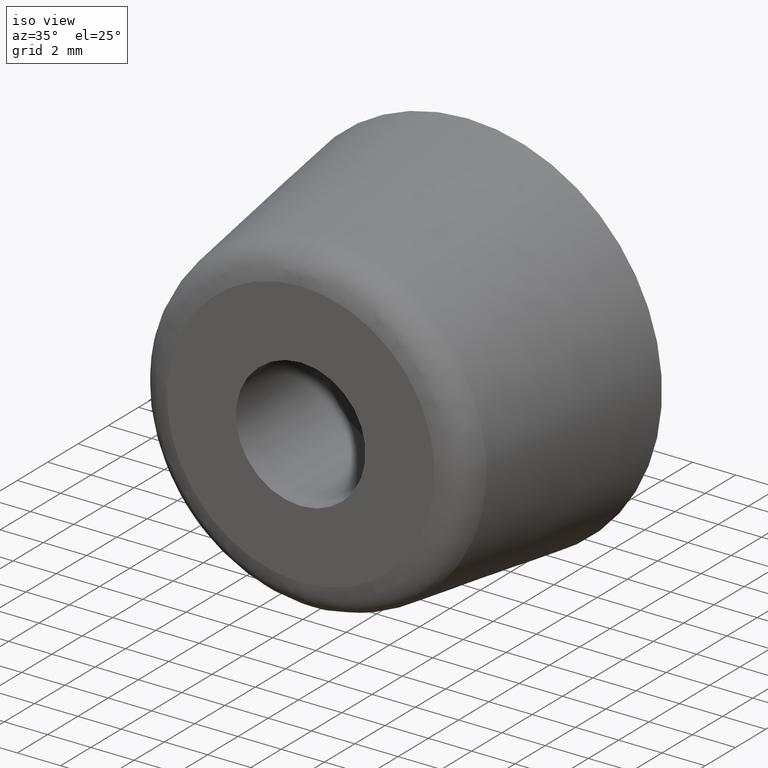
[diagram: clean part render]
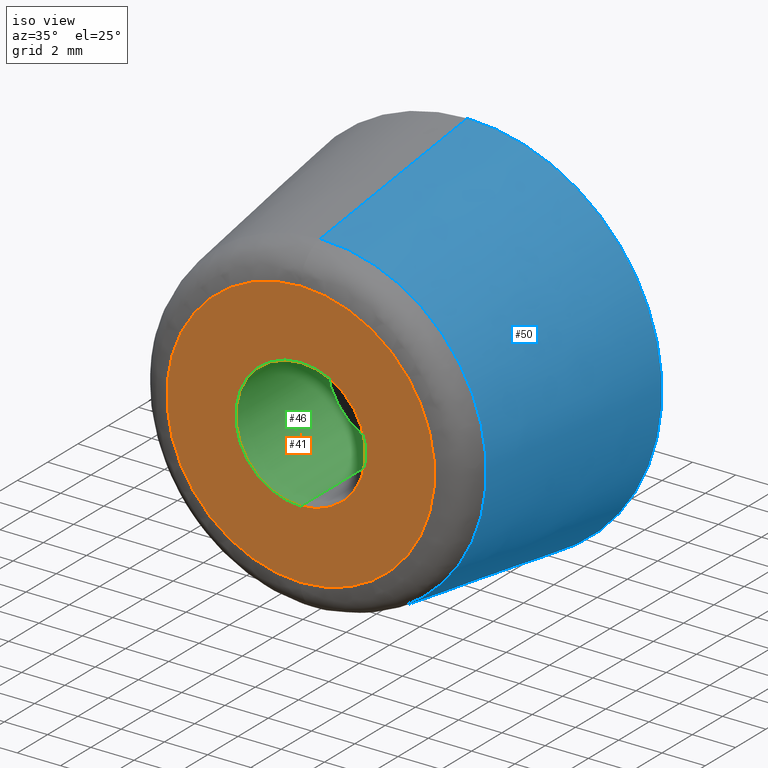
[diagram: same view with three faces highlighted in distinct colors, each labeled with its STEP entity id]
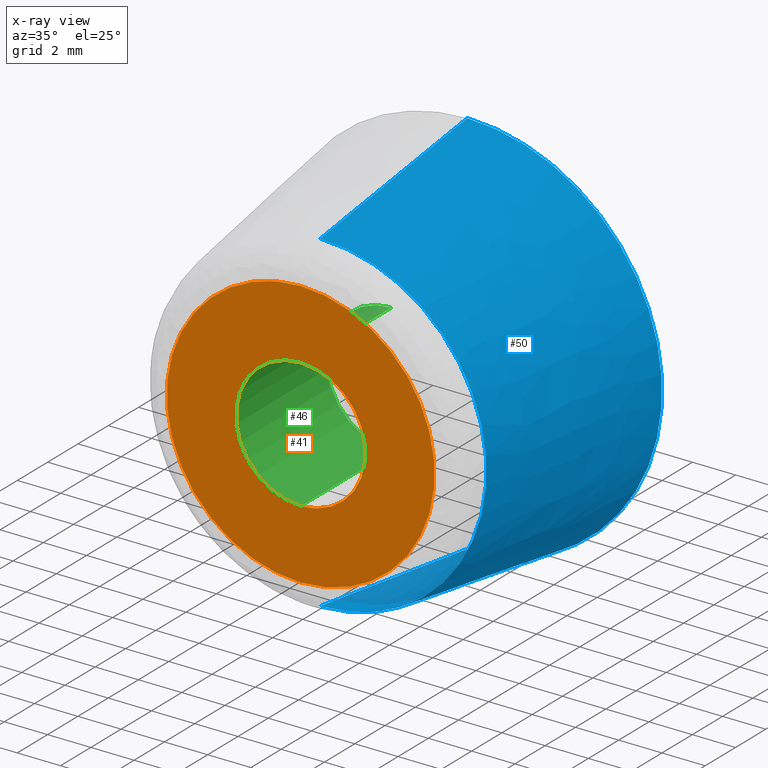
[diagram: x-ray of the same camera — body ghosted, the three highlighted faces saturated]
A machine part, iso view with three faces highlighted in distinct colors.
The next image is the same camera in x-ray (body ghosted, the three faces saturated) — at least one of them is partly hidden behind the body in this view.
Their STEP definitions:

[orange] entity #41 — the highlighted planar face has unit normal (0, -1, -0).
#41=ADVANCED_FACE('',(#63,#64),#62,.T.);
#62=PLANE('',#173);
#63=FACE_OUTER_BOUND('',#174,.T.);
#64=FACE_BOUND('',#175,.T.);
#170=CARTESIAN_POINT('',(-1.28670522717E+01,-1.10000000000E+01,1.42385258444E+01));
#171=DIRECTION('',(0.00000000000E+00,-1.00000000000E+00,-0.00000000000E+00));
#172=DIRECTION('',(0.00000000000E+00,0.00000000000E+00,-1.00000000000E+00));
#173=AXIS2_PLACEMENT_3D('',#170,#171,#172);
#174=EDGE_LOOP('',(#280,#281));
#175=EDGE_LOOP('',(#282,#283));
#280=ORIENTED_EDGE('',*,*,#324,.T.);
#281=ORIENTED_EDGE('',*,*,#325,.T.);
#282=ORIENTED_EDGE('',*,*,#326,.F.);
#283=ORIENTED_EDGE('',*,*,#327,.F.);
#324=EDGE_CURVE('',#370,#371,#372,.T.);
#325=EDGE_CURVE('',#371,#370,#378,.T.);
#326=EDGE_CURVE('',#384,#385,#386,.T.);
#327=EDGE_CURVE('',#385,#384,#392,.T.);
#370=VERTEX_POINT('',#508);
#371=VERTEX_POINT('',#509);
#372=CIRCLE('',#513,6.19066341060E+00);
#378=CIRCLE('',#517,6.19066341060E+00);
#384=VERTEX_POINT('',#518);
#385=VERTEX_POINT('',#519);
#386=CIRCLE('',#523,3.00000000000E+00);
#392=CIRCLE('',#527,3.00000000000E+00);
#508=CARTESIAN_POINT('',(3.55271367880E-14,-1.10000000000E+01,-6.19066341060E+00));
#509=CARTESIAN_POINT('',(3.52310773148E-14,-1.10000000000E+01,6.19066341060E+00));
#510=CARTESIAN_POINT('',(3.55271367880E-14,-1.10000000000E+01,0.00000000000E+00));
#511=DIRECTION('',(0.00000000000E+00,-1.00000000000E+00,-0.00000000000E+00));
#512=DIRECTION('',(-1.22460635382E-16,0.00000000000E+00,-1.00000000000E+00));
#513=AXIS2_PLACEMENT_3D('',#510,#511,#512);
#514=CARTESIAN_POINT('',(3.55271367880E-14,-1.10000000000E+01,0.00000000000E+00));
#515=DIRECTION('',(0.00000000000E+00,-1.00000000000E+00,-0.00000000000E+00));
#516=DIRECTION('',(-1.22460635382E-16,0.00000000000E+00,-1.00000000000E+00));
#517=AXIS2_PLACEMENT_3D('',#514,#515,#516);
#518=CARTESIAN_POINT('',(3.53791070514E-14,-1.10000000000E+01,3.00000000000E+00));
#519=CARTESIAN_POINT('',(3.55271367880E-14,-1.10000000000E+01,-3.00000000000E+00));
#520=CARTESIAN_POINT('',(3.55271367880E-14,-1.10000000000E+01,0.00000000000E+00));
#521=DIRECTION('',(0.00000000000E+00,-1.00000000000E+00,-0.00000000000E+00));
#522=DIRECTION('',(-1.22460635382E-16,0.00000000000E+00,-1.00000000000E+00));
#523=AXIS2_PLACEMENT_3D('',#520,#521,#522);
#524=CARTESIAN_POINT('',(3.55271367880E-14,-1.10000000000E+01,0.00000000000E+00));
#525=DIRECTION('',(0.00000000000E+00,-1.00000000000E+00,-0.00000000000E+00));
#526=DIRECTION('',(-1.22460635382E-16,0.00000000000E+00,-1.00000000000E+00));
#527=AXIS2_PLACEMENT_3D('',#524,#525,#526);

[blue] entity #50 — the highlighted face is a freeform B-spline surface patch.
#50=ADVANCED_FACE('',(#155),#154,.T.);
#154=( BOUNDED_SURFACE() B_SPLINE_SURFACE( 2,1,((#265,#266),(#267,#268),(#269,#270),(#271,#272),(#273,#274)), .UNSPECIFIED.,.F.,.F.,.F.) B_SPLINE_SURFACE_WITH_KNOTS((3,2,3),(2,2),(0.00000000000E+00,5.00000000000E-01,1.00000000000E+00),(0.00000000000E+00,1.00000000000E+00), .UNSPECIFIED. ) GEOMETRIC_REPRESENTATION_ITEM() RATIONAL_B_SPLINE_SURFACE(((1.00000000000E+00,1.00000000000E+00),(7.07106781187E-01,7.07106781187E-01),(1.00000000000E+00,1.00000000000E+00),(7.07106781187E-01,7.07106781187E-01),(1.00000000000E+00,1.00000000000E+00))) REPRESENTATION_ITEM('') SURFACE() );
#155=FACE_OUTER_BOUND('',#275,.T.);
#265=CARTESIAN_POINT('',(3.64672869501E-14,-9.70266980710E+00,7.67690866267E+00));
#266=CARTESIAN_POINT('',(3.66293189072E-14,0.00000000000E+00,9.00000000000E+00));
#267=CARTESIAN_POINT('',(7.67690866267E+00,-9.70266980710E+00,7.67690866267E+00));
#268=CARTESIAN_POINT('',(9.00000000000E+00,0.00000000000E+00,9.00000000000E+00));
#269=CARTESIAN_POINT('',(7.67690866267E+00,-9.70266980710E+00,-4.70075081054E-16));
#270=CARTESIAN_POINT('',(9.00000000000E+00,0.00000000000E+00,-5.51091059616E-16));
#271=CARTESIAN_POINT('',(7.67690866267E+00,-9.70266980710E+00,-7.67690866267E+00));
#272=CARTESIAN_POINT('',(9.00000000000E+00,0.00000000000E+00,-9.00000000000E+00));
#273=CARTESIAN_POINT('',(3.55271367880E-14,-9.70266980710E+00,-7.67690866267E+00));
#274=CARTESIAN_POINT('',(3.55271367880E-14,0.00000000000E+00,-9.00000000000E+00));
#275=EDGE_LOOP('',(#316,#317,#318,#319));
#316=ORIENTED_EDGE('',*,*,#339,.F.);
#317=ORIENTED_EDGE('',*,*,#340,.T.);
#318=ORIENTED_EDGE('',*,*,#329,.T.);
#319=ORIENTED_EDGE('',*,*,#341,.F.);
#329=EDGE_CURVE('',#399,#398,#406,.T.);
#339=EDGE_CURVE('',#457,#450,#470,.T.);
#340=EDGE_CURVE('',#457,#399,#476,.T.);
#341=EDGE_CURVE('',#450,#398,#482,.T.);
#398=VERTEX_POINT('',#528);
#399=VERTEX_POINT('',#529);
#406=CIRCLE('',#537,9.00000000000E+00);
#450=VERTEX_POINT('',#556);
#457=VERTEX_POINT('',#560);
#470=CIRCLE('',#573,7.67690866267E+00);
#476=(BOUNDED_CURVE() B_SPLINE_CURVE(1,(#574,#575),.UNSPECIFIED.,.F.,.F.) B_SPLINE_CURVE_WITH_KNOTS((2,2),(0.00000000000E+00,1.00000000000E+00),.UNSPECIFIED.) CURVE() GEOMETRIC_REPRESENTATION_ITEM() RATIONAL_B_SPLINE_CURVE((1.00000000000E+00,1.00000000000E+00)) REPRESENTATION_ITEM('') );
#482=(BOUNDED_CURVE() B_SPLINE_CURVE(1,(#576,#577),.UNSPECIFIED.,.F.,.F.) B_SPLINE_CURVE_WITH_KNOTS((2,2),(0.00000000000E+00,1.00000000000E+00),.UNSPECIFIED.) CURVE() GEOMETRIC_REPRESENTATION_ITEM() RATIONAL_B_SPLINE_CURVE((7.50000000000E-01,7.50000000000E-01)) REPRESENTATION_ITEM('') );
#528=CARTESIAN_POINT('',(3.61192557345E-14,0.00000000000E+00,9.00000000000E+00));
#529=CARTESIAN_POINT('',(3.55271367880E-14,0.00000000000E+00,-9.00000000000E+00));
#534=CARTESIAN_POINT('',(3.55271367880E-14,0.00000000000E+00,0.00000000000E+00));
#535=DIRECTION('',(0.00000000000E+00,-1.00000000000E+00,-0.00000000000E+00));
#536=DIRECTION('',(-1.22460635382E-16,0.00000000000E+00,-1.00000000000E+00));
#537=AXIS2_PLACEMENT_3D('',#534,#535,#536);
#556=CARTESIAN_POINT('',(3.64153152077E-14,-9.70266980710E+00,7.67690866267E+00));
#560=CARTESIAN_POINT('',(3.55271367880E-14,-9.70266980710E+00,-7.67690866267E+00));
#570=CARTESIAN_POINT('',(3.55271367880E-14,-9.70266980710E+00,0.00000000000E+00));
#571=DIRECTION('',(0.00000000000E+00,-1.00000000000E+00,-0.00000000000E+00));
#572=DIRECTION('',(-1.22460635382E-16,0.00000000000E+00,-1.00000000000E+00));
#573=AXIS2_PLACEMENT_3D('',#570,#571,#572);
#574=CARTESIAN_POINT('',(3.36468985628E-14,-9.70266980710E+00,-7.67690866267E+00));
#575=CARTESIAN_POINT('',(3.33228453511E-14,0.00000000000E+00,-9.00000000000E+00));
#576=CARTESIAN_POINT('',(3.73034936274E-14,-9.70266980710E+00,7.67690866267E+00));
#577=CARTESIAN_POINT('',(3.75995531006E-14,0.00000000000E+00,9.00000000000E+00));

[green] entity #46 — the highlighted cylindrical surface (partial cylindrical patch) has radius 3 mm, axis along (-0, 1, 0).
#46=ADVANCED_FACE('',(#115),#114,.F.);
#114=CYLINDRICAL_SURFACE('',#200,3.00000000000E+00);
#115=FACE_OUTER_BOUND('',#201,.T.);
#197=CARTESIAN_POINT('',(3.55271367880E-14,0.00000000000E+00,0.00000000000E+00));
#198=DIRECTION('',(-0.00000000000E+00,1.00000000000E+00,0.00000000000E+00));
#199=DIRECTION('',(-0.00000000000E+00,-0.00000000000E+00,1.00000000000E+00));
#200=AXIS2_PLACEMENT_3D('',#197,#198,#199);
#201=EDGE_LOOP('',(#300,#301,#302,#303));
#300=ORIENTED_EDGE('',*,*,#321,.F.);
#301=ORIENTED_EDGE('',*,*,#334,.F.);
#302=ORIENTED_EDGE('',*,*,#326,.T.);
#303=ORIENTED_EDGE('',*,*,#335,.T.);
#321=EDGE_CURVE('',#343,#342,#350,.T.);
#326=EDGE_CURVE('',#384,#385,#386,.T.);
#334=EDGE_CURVE('',#384,#343,#438,.T.);
#335=EDGE_CURVE('',#385,#342,#444,.T.);
#342=VERTEX_POINT('',#488);
#343=VERTEX_POINT('',#489);
#350=CIRCLE('',#497,3.00000000000E+00);
#384=VERTEX_POINT('',#518);
#385=VERTEX_POINT('',#519);
#386=CIRCLE('',#523,3.00000000000E+00);
#438=(BOUNDED_CURVE() B_SPLINE_CURVE(1,(#552,#553),.UNSPECIFIED.,.F.,.F.) B_SPLINE_CURVE_WITH_KNOTS((2,2),(8.33333347523E-02,9.16666668865E-01),.UNSPECIFIED.) CURVE() GEOMETRIC_REPRESENTATION_ITEM() RATIONAL_B_SPLINE_CURVE((1.00000000000E+00,1.00000000000E+00)) REPRESENTATION_ITEM('') );
#444=(BOUNDED_CURVE() B_SPLINE_CURVE(1,(#554,#555),.UNSPECIFIED.,.F.,.F.) B_SPLINE_CURVE_WITH_KNOTS((2,2),(8.33333333333E-02,9.16666666667E-01),.UNSPECIFIED.) CURVE() GEOMETRIC_REPRESENTATION_ITEM() RATIONAL_B_SPLINE_CURVE((7.50000000000E-01,7.50000000000E-01)) REPRESENTATION_ITEM('') );
#488=CARTESIAN_POINT('',(3.55271367880E-14,-5.00000000000E+00,-3.00000000000E+00));
#489=CARTESIAN_POINT('',(3.53791070514E-14,-5.00000000000E+00,3.00000000000E+00));
#494=CARTESIAN_POINT('',(3.55271367880E-14,-5.00000000000E+00,0.00000000000E+00));
#495=DIRECTION('',(0.00000000000E+00,-1.00000000000E+00,-0.00000000000E+00));
#496=DIRECTION('',(-1.22460635382E-16,0.00000000000E+00,-1.00000000000E+00));
#497=AXIS2_PLACEMENT_3D('',#494,#495,#496);
#518=CARTESIAN_POINT('',(3.53791070514E-14,-1.10000000000E+01,3.00000000000E+00));
#519=CARTESIAN_POINT('',(3.55271367880E-14,-1.10000000000E+01,-3.00000000000E+00));
#520=CARTESIAN_POINT('',(3.55271367880E-14,-1.10000000000E+01,0.00000000000E+00));
#521=DIRECTION('',(0.00000000000E+00,-1.00000000000E+00,-0.00000000000E+00));
#522=DIRECTION('',(-1.22460635382E-16,0.00000000000E+00,-1.00000000000E+00));
#523=AXIS2_PLACEMENT_3D('',#520,#521,#522);
#552=CARTESIAN_POINT('',(3.55271367880E-14,-1.09999999898E+01,3.00000000000E+00));
#553=CARTESIAN_POINT('',(3.55271367880E-14,-4.99999998417E+00,3.00000000000E+00));
#554=CARTESIAN_POINT('',(3.53791070514E-14,-1.10000000000E+01,-3.00000000000E+00));
#555=CARTESIAN_POINT('',(3.53791070514E-14,-5.00000000000E+00,-3.00000000000E+00));